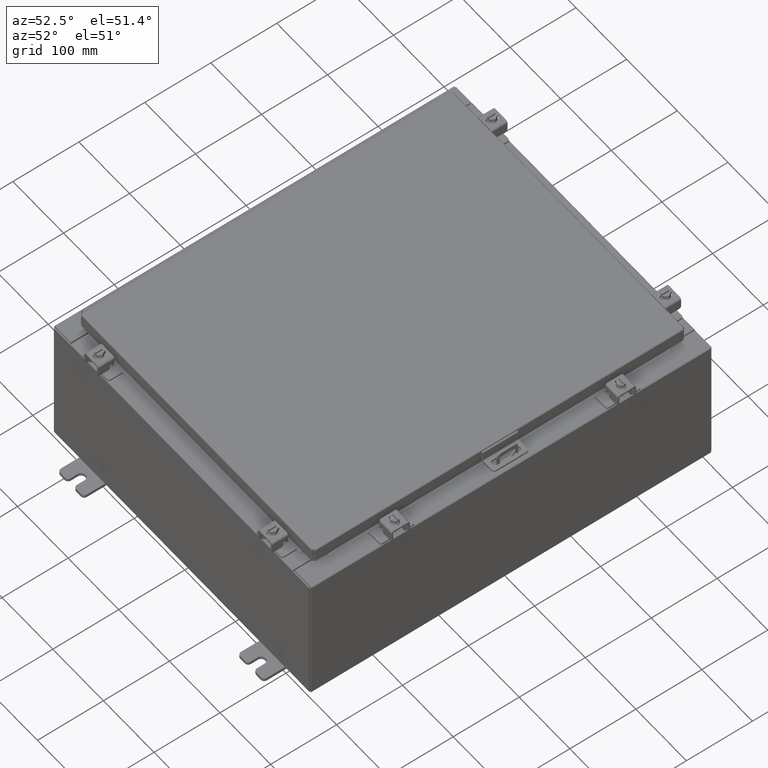
[diagram: clean part render]
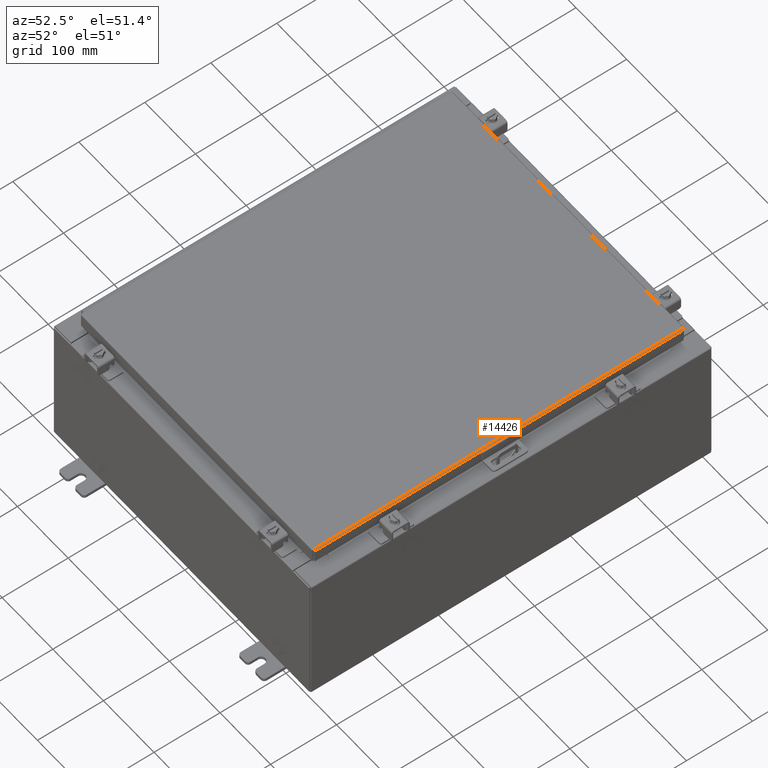
[diagram: same view with one face highlighted and labeled with its STEP entity id]
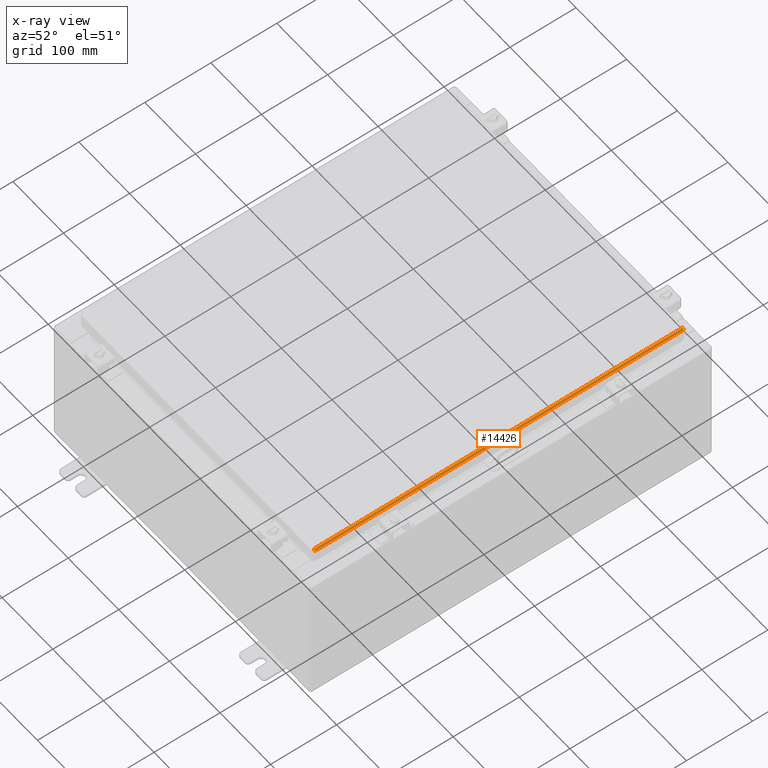
[diagram: x-ray of the same camera — body ghosted, the highlighted face saturated]
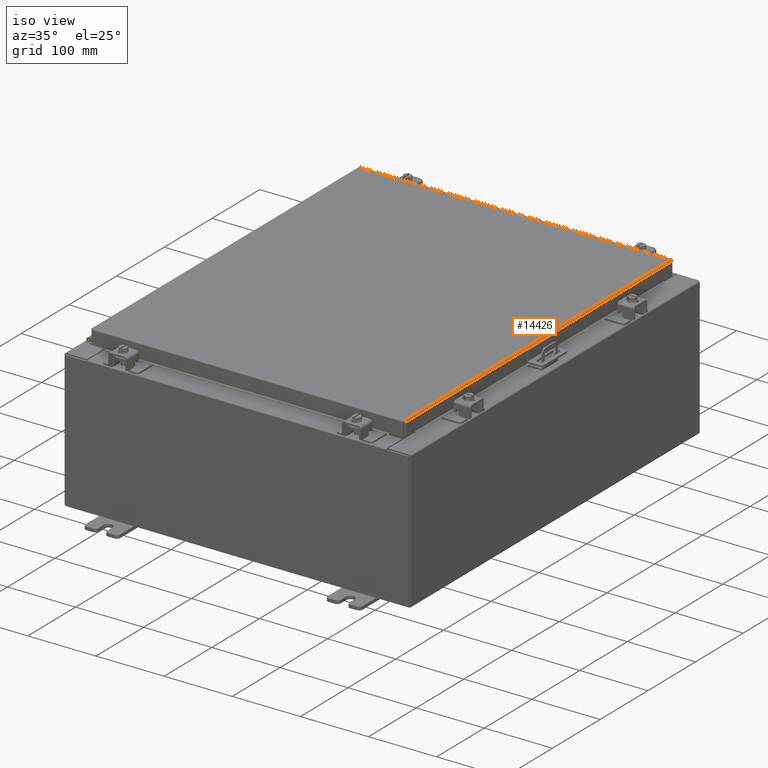
[diagram: same view with one face highlighted and labeled with its STEP entity id]
A machine part, auxiliary view. The second image highlights one B-rep face of the part: STEP entity #14426.
The next image is the same camera in x-ray: the body ghosted, the highlighted face saturated — about 0% of this face is hidden behind the body in this view.
A second angle (iso view) of the same face is appended — the face is thin or edge-on in the first view.
In plain terms, the highlighted cylindrical surface (edge-blend (fillet) strip) has radius 2.2276 mm, axis along (-0, -1, -0).
Its self-contained STEP definition (entity closure, byte-faithful):
#319 = VERTEX_POINT ( 'NONE', #6990 ) ;
#2646 = EDGE_CURVE ( 'NONE', #11176, #319, #15477, .T. ) ;
#4477 = EDGE_LOOP ( 'NONE', ( #27733, #8037, #29988, #12633 ) ) ;
#4625 = EDGE_CURVE ( 'NONE', #319, #5676, #18222, .T. ) ;
#5676 = VERTEX_POINT ( 'NONE', #8286 ) ;
#6990 = CARTESIAN_POINT ( 'NONE',  ( 9.077999999999999400, -11.00515786437626900, -0.08770000000000007000 ) ) ;
#7891 = CARTESIAN_POINT ( 'NONE',  ( 8.990299999999999500, 11.00630000000000000, -2.048885995248197400E-016 ) ) ;
#8037 = ORIENTED_EDGE ( 'NONE', *, *, #4625, .F. ) ;
#8114 = CARTESIAN_POINT ( 'NONE',  ( 9.034467384578528400, 11.00591928812542400, -0.01106893374133176100 ) ) ;
#8286 = CARTESIAN_POINT ( 'NONE',  ( 8.990299999999997700, -11.00630000000000000, -2.048885995248197400E-016 ) ) ;
#8347 = CARTESIAN_POINT ( 'NONE',  ( 9.077999999999999400, 0.0000000000000000000, -0.08770000000000007000 ) ) ;
#8775 = VECTOR ( 'NONE', #13431, 39.37007874015748100 ) ;
#9529 = CARTESIAN_POINT ( 'NONE',  ( 9.066931066258664600, -11.00553857625084800, -0.04353261542147222900 ) ) ;
#10332 = EDGE_CURVE ( 'NONE', #17559, #11176, #27035, .T. ) ;
#10649 = CARTESIAN_POINT ( 'NONE',  ( 9.060430782078317000, 11.00563375421949200, -0.03380425265820009900 ) ) ;
#11176 = VERTEX_POINT ( 'NONE', #24965 ) ;
#12062 = CARTESIAN_POINT ( 'NONE',  ( 9.044195747341797500, -11.00582411015677800, -0.01756921792167976500 ) ) ;
#12075 = CARTESIAN_POINT ( 'NONE',  ( 8.990299999999997700, -11.00630000000000000, -2.048885995248197400E-016 ) ) ;
#12633 = ORIENTED_EDGE ( 'NONE', *, *, #10332, .F. ) ;
#12762 = EDGE_CURVE ( 'NONE', #5676, #17559, #18559, .T. ) ;
#13205 = CARTESIAN_POINT ( 'NONE',  ( 9.075717403743809100, 11.00534822031356400, -0.06474471054169121700 ) ) ;
#13293 = AXIS2_PLACEMENT_3D ( 'NONE', #16542, #19070, #31517 ) ;
#13431 = DIRECTION ( 'NONE',  ( 0.0000000000000000000, -1.000000000000000000, 0.0000000000000000000 ) ) ;
#14426 = ADVANCED_FACE ( 'NONE', ( #14941 ), #19256, .T. ) ;
#14593 = CARTESIAN_POINT ( 'NONE',  ( 9.013255289458308900, -11.00610964406271100, -0.002282596256188923000 ) ) ;
#14941 = FACE_OUTER_BOUND ( 'NONE', #4477, .T. ) ;
#15477 = LINE ( 'NONE', #8347, #8775 ) ;
#15707 = CARTESIAN_POINT ( 'NONE',  ( 9.077999999999999400, 11.00515786437627100, -0.08770000000000007000 ) ) ;
#16542 = CARTESIAN_POINT ( 'NONE',  ( 8.990299999999997700, -11.00630000000000000, -0.08770000000000030500 ) ) ;
#17112 = CARTESIAN_POINT ( 'NONE',  ( 8.990299999999997700, -11.00630000000000000, -2.048885995248197400E-016 ) ) ;
#17559 = VERTEX_POINT ( 'NONE', #21419 ) ;
#18222 = B_SPLINE_CURVE_WITH_KNOTS ( 'NONE', 3,
 ( #22055, #19538, #24541, #9529, #27056, #12062, #29573, #14593, #32087, #17112 ),
 .UNSPECIFIED., .F., .F.,
 ( 4, 2, 2, 2, 4 ),
 ( 0.0000000000000000000, 0.2500000000000000000, 0.5000000000000000000, 0.7500000000000000000, 1.000000000000000000 ),
 .UNSPECIFIED. ) ;
#18559 = LINE ( 'NONE', #12075, #24424 ) ;
#19070 = DIRECTION ( 'NONE',  ( -0.0000000000000000000, -1.000000000000000000, -0.0000000000000000000 ) ) ;
#19256 = CYLINDRICAL_SURFACE ( 'NONE', #13293, 0.08770000000000026400 ) ;
#19538 = CARTESIAN_POINT ( 'NONE',  ( 9.077999999999999400, -11.00525304234491000, -0.07622009684500735700 ) ) ;
#21419 = CARTESIAN_POINT ( 'NONE',  ( 8.990299999999999500, 11.00630000000000000, -2.048885995248197400E-016 ) ) ;
#22055 = CARTESIAN_POINT ( 'NONE',  ( 9.077999999999999400, -11.00515786437626900, -0.08770000000000007000 ) ) ;
#23164 = CARTESIAN_POINT ( 'NONE',  ( 9.013255289458310700, 11.00610964406271500, -0.002282596256188923400 ) ) ;
#24424 = VECTOR ( 'NONE', #29581, 39.37007874015748100 ) ;
#24541 = CARTESIAN_POINT ( 'NONE',  ( 9.075717403743809100, -11.00534822031355900, -0.06474471054169121700 ) ) ;
#24965 = CARTESIAN_POINT ( 'NONE',  ( 9.077999999999999400, 11.00515786437627100, -0.08770000000000007000 ) ) ;
#25650 = CARTESIAN_POINT ( 'NONE',  ( 9.044195747341799300, 11.00582411015678200, -0.01756921792167976500 ) ) ;
#27035 = B_SPLINE_CURVE_WITH_KNOTS ( 'NONE', 3,
 ( #7891, #28074, #23164, #8114, #25650, #10649, #28174, #13205, #30709, #15707 ),
 .UNSPECIFIED., .F., .F.,
 ( 4, 2, 2, 2, 4 ),
 ( 0.0000000000000000000, 0.2500000000000000000, 0.5000000000000000000, 0.7500000000000000000, 1.000000000000000000 ),
 .UNSPECIFIED. ) ;
#27056 = CARTESIAN_POINT ( 'NONE',  ( 9.060430782078318800, -11.00563375421949200, -0.03380425265820009200 ) ) ;
#27733 = ORIENTED_EDGE ( 'NONE', *, *, #12762, .F. ) ;
#28074 = CARTESIAN_POINT ( 'NONE',  ( 9.001779903154989900, 11.00620482203135200, -2.037881236484656600E-016 ) ) ;
#28174 = CARTESIAN_POINT ( 'NONE',  ( 9.066931066258666400, 11.00553857625084800, -0.04353261542147223600 ) ) ;
#29573 = CARTESIAN_POINT ( 'NONE',  ( 9.034467384578528400, -11.00591928812542100, -0.01106893374133176100 ) ) ;
#29581 = DIRECTION ( 'NONE',  ( 0.0000000000000000000, 1.000000000000000000, 0.0000000000000000000 ) ) ;
#29988 = ORIENTED_EDGE ( 'NONE', *, *, #2646, .F. ) ;
#30709 = CARTESIAN_POINT ( 'NONE',  ( 9.078000000000001200, 11.00525304234491700, -0.07622009684500738500 ) ) ;
#31517 = DIRECTION ( 'NONE',  ( 1.000000000000000000, 0.0000000000000000000, 2.725618009642215600E-015 ) ) ;
#32087 = CARTESIAN_POINT ( 'NONE',  ( 9.001779903154991700, -11.00620482203135400, -2.038214714022946300E-016 ) ) ;